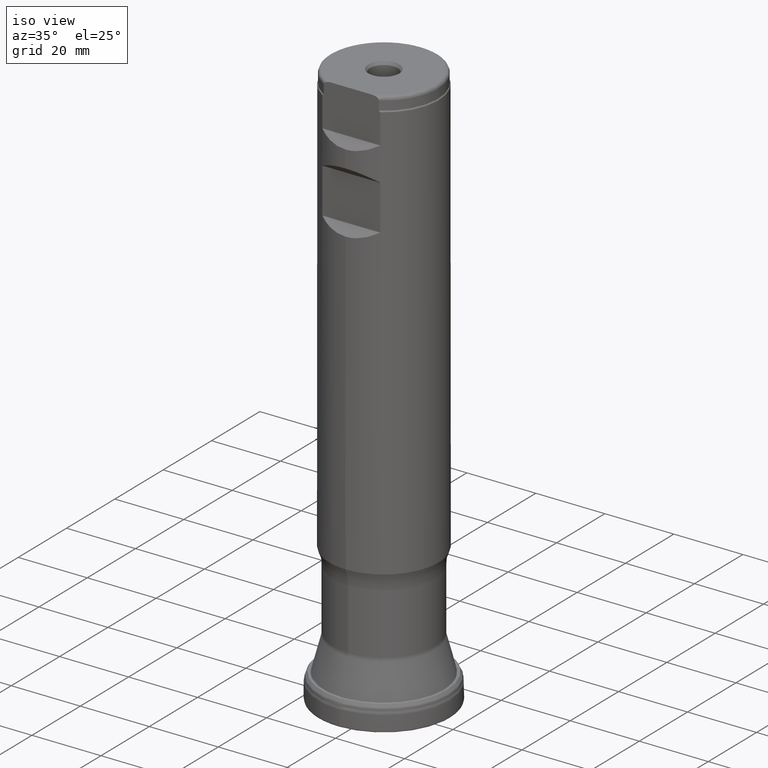
[diagram: clean part render]
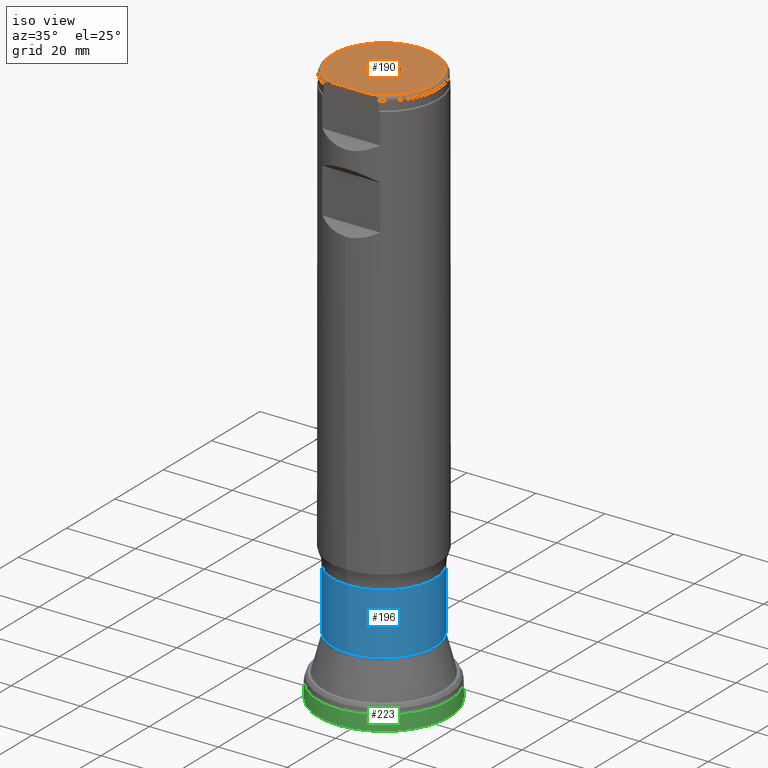
[diagram: same view with three faces highlighted in distinct colors, each labeled with its STEP entity id]
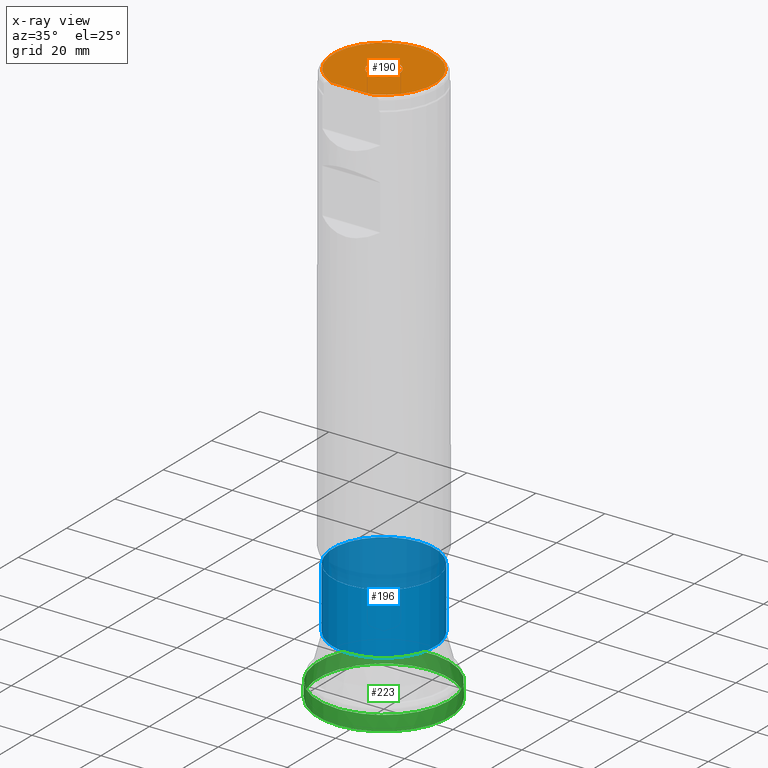
[diagram: x-ray of the same camera — body ghosted, the three highlighted faces saturated]
A machine part, iso view with three faces highlighted in distinct colors.
The next image is the same camera in x-ray (body ghosted, the three faces saturated) — at least one of them is partly hidden behind the body in this view.
Their STEP definitions:

[orange] entity #190 — the highlighted planar face has unit normal (0, 0, 1).
#161=PLANE('',#823);
#190=ADVANCED_FACE('',(#291,#292),#161,.T.);
#250=CIRCLE('',#821,4.5);
#251=CIRCLE('',#822,14.675);
#291=FACE_BOUND('',#374,.T.);
#292=FACE_BOUND('',#375,.T.);
#374=EDGE_LOOP('',(#523));
#375=EDGE_LOOP('',(#524,#525));
#465=LINE('',#1407,#484);
#484=VECTOR('',#918,1.);
#523=ORIENTED_EDGE('',*,*,#717,.T.);
#524=ORIENTED_EDGE('',*,*,#718,.T.);
#525=ORIENTED_EDGE('',*,*,#719,.T.);
#655=VERTEX_POINT('',#1403);
#656=VERTEX_POINT('',#1405);
#657=VERTEX_POINT('',#1406);
#717=EDGE_CURVE('',#655,#655,#250,.T.);
#718=EDGE_CURVE('',#656,#657,#251,.T.);
#719=EDGE_CURVE('',#657,#656,#465,.T.);
#821=AXIS2_PLACEMENT_3D('',#1402,#914,#915);
#822=AXIS2_PLACEMENT_3D('',#1404,#916,#917);
#823=AXIS2_PLACEMENT_3D('',#1408,#919,#920);
#914=DIRECTION('',(0.,-1.17145536458252E-15,-1.));
#915=DIRECTION('',(0.,-1.,0.));
#916=DIRECTION('',(0.,1.17145536458252E-15,1.));
#917=DIRECTION('',(0.,-1.,1.8913509789185E-15));
#918=DIRECTION('',(1.,-1.37230767120917E-30,-1.17145536458252E-15));
#919=DIRECTION('',(0.,1.17145536458252E-15,1.));
#920=DIRECTION('',(0.,-1.,1.16573417585641E-15));
#1402=CARTESIAN_POINT('',(0.,1.93407280692575E-13,165.1));
#1403=CARTESIAN_POINT('',(0.,-4.49999999999981,165.1));
#1404=CARTESIAN_POINT('',(0.,1.93407280692575E-13,165.1));
#1405=CARTESIAN_POINT('',(5.78322282468843,-13.4873999999998,165.1));
#1406=CARTESIAN_POINT('',(-5.78322282468864,-13.4873999999998,165.1));
#1407=CARTESIAN_POINT('',(-17.5,-13.4873999999998,165.1));
#1408=CARTESIAN_POINT('',(0.,1.93407280692575E-13,165.1));

[blue] entity #196 — the highlighted cylindrical surface (bore or boss wall) has radius 14.8 mm, axis along (0, 0, 1).
#196=ADVANCED_FACE('',(#301,#302),#240,.T.);
#240=CYLINDRICAL_SURFACE('',#839,14.8);
#260=CIRCLE('',#837,14.8);
#261=CIRCLE('',#838,14.8);
#301=FACE_BOUND('',#385,.T.);
#302=FACE_BOUND('',#386,.T.);
#385=EDGE_LOOP('',(#538));
#386=EDGE_LOOP('',(#539));
#538=ORIENTED_EDGE('',*,*,#730,.T.);
#539=ORIENTED_EDGE('',*,*,#731,.T.);
#666=VERTEX_POINT('',#1447);
#667=VERTEX_POINT('',#1449);
#730=EDGE_CURVE('',#666,#666,#260,.T.);
#731=EDGE_CURVE('',#667,#667,#261,.T.);
#837=AXIS2_PLACEMENT_3D('',#1446,#947,#948);
#838=AXIS2_PLACEMENT_3D('',#1448,#949,#950);
#839=AXIS2_PLACEMENT_3D('',#1450,#951,#952);
#947=DIRECTION('',(0.,1.17145536458252E-15,1.));
#948=DIRECTION('',(0.,-1.,1.17211045674109E-15));
#949=DIRECTION('',(0.,-1.17145536458252E-15,-1.));
#950=DIRECTION('',(0.,-1.,9.37688365392869E-16));
#951=DIRECTION('',(0.,1.17145536458252E-15,1.));
#952=DIRECTION('',(0.,-1.,1.17145536458252E-15));
#1446=CARTESIAN_POINT('',(0.,2.07187410793546E-14,17.6863256644338));
#1447=CARTESIAN_POINT('',(0.,-14.8,17.6863256644338));
#1448=CARTESIAN_POINT('',(0.,4.15802529875227E-14,35.4945260781155));
#1449=CARTESIAN_POINT('',(0.,-14.8,35.4945260781155));
#1450=CARTESIAN_POINT('',(0.,0.,0.));

[green] entity #223 — the highlighted face is a SurfaceOfRevolution surface.
#114=SURFACE_OF_REVOLUTION('',#799,#135);
#135=AXIS1_PLACEMENT('',#1553,#1033);
#223=ADVANCED_FACE('',(#339,#340),#114,.F.);
#273=CIRCLE('',#871,19.0499999619467);
#274=CIRCLE('',#872,19.0499998175294);
#339=FACE_BOUND('',#429,.T.);
#340=FACE_BOUND('',#430,.T.);
#429=EDGE_LOOP('',(#606));
#430=EDGE_LOOP('',(#607));
#606=ORIENTED_EDGE('',*,*,#749,.T.);
#607=ORIENTED_EDGE('',*,*,#750,.F.);
#681=VERTEX_POINT('',#1526);
#682=VERTEX_POINT('',#1540);
#749=EDGE_CURVE('',#681,#681,#273,.T.);
#750=EDGE_CURVE('',#682,#682,#274,.T.);
#799=B_SPLINE_CURVE_WITH_KNOTS('',3,(#1541,#1542,#1543,#1544,#1545,#1546,
#1547,#1548,#1549,#1550,#1551,#1552),.UNSPECIFIED.,.F.,.F.,(4,1,1,1,1,1,
1,1,1,4),(0.,0.221418157861957,0.365983083750147,0.510548009638337,0.655112935526528,
0.799677861414718,0.871960324358813,0.90810155583086,0.944242787302908,
1.),.UNSPECIFIED.);
#871=AXIS2_PLACEMENT_3D('',#1525,#1028,#1029);
#872=AXIS2_PLACEMENT_3D('',#1539,#1031,#1032);
#1028=DIRECTION('',(0.,1.17145536458252E-15,1.));
#1029=DIRECTION('',(0.,-1.,1.17241809962287E-15));
#1031=DIRECTION('',(0.,1.17145536458252E-15,1.));
#1032=DIRECTION('',(0.,-1.,1.18380080859356E-15));
#1033=DIRECTION('',(0.,1.17145536458252E-15,1.));
#1525=CARTESIAN_POINT('',(0.,4.5685732294722E-16,0.389991233776143));
#1526=CARTESIAN_POINT('',(0.,-19.0499999619467,0.389991233776165));
#1539=CARTESIAN_POINT('',(0.,5.5112619407133E-15,4.70462819782926));
#1540=CARTESIAN_POINT('',(0.,-19.0499998175294,4.70462819782928));
#1541=CARTESIAN_POINT('',(18.9632892823778,-1.8155328674677,4.70462793984546));
#1542=CARTESIAN_POINT('',(18.9647607216455,-1.90081503841667,4.38634500719714));
#1543=CARTESIAN_POINT('',(18.9634116688144,-2.04178510973329,3.86023664262779));
#1544=CARTESIAN_POINT('',(18.9491169293843,-2.23840300863843,3.12647451226594));
#1545=CARTESIAN_POINT('',(18.9282331894436,-2.4053713161252,2.50338136065094));
#1546=CARTESIAN_POINT('',(18.8997213493052,-2.57226956850283,1.88056631840897));
#1547=CARTESIAN_POINT('',(18.8724765765966,-2.71122892258865,1.36169080098696));
#1548=CARTESIAN_POINT('',(18.8522347613065,-2.80874868595928,0.998603279412067));
#1549=CARTESIAN_POINT('',(18.8403728344468,-2.86397847753352,0.79103193090857));
#1550=CARTESIAN_POINT('',(18.8293522138123,-2.9145375778137,0.607455353660357));
#1551=CARTESIAN_POINT('',(18.8239958413989,-2.9344856546909,0.472213763827122));
#1552=CARTESIAN_POINT('',(18.8208758810147,-2.94569679729784,0.389991233776146));
#1553=CARTESIAN_POINT('',(0.,0.,0.));